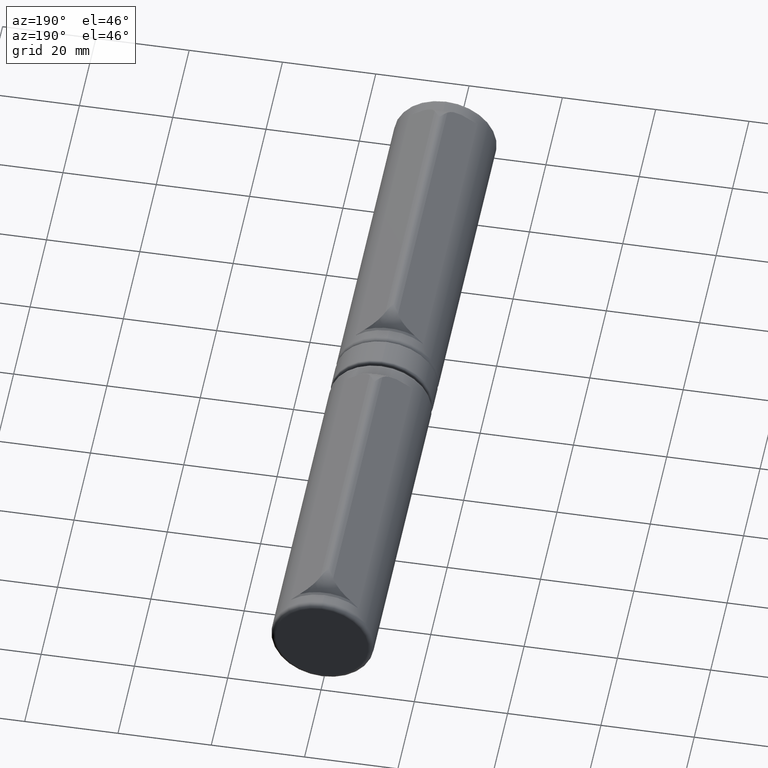
[diagram: clean part render]
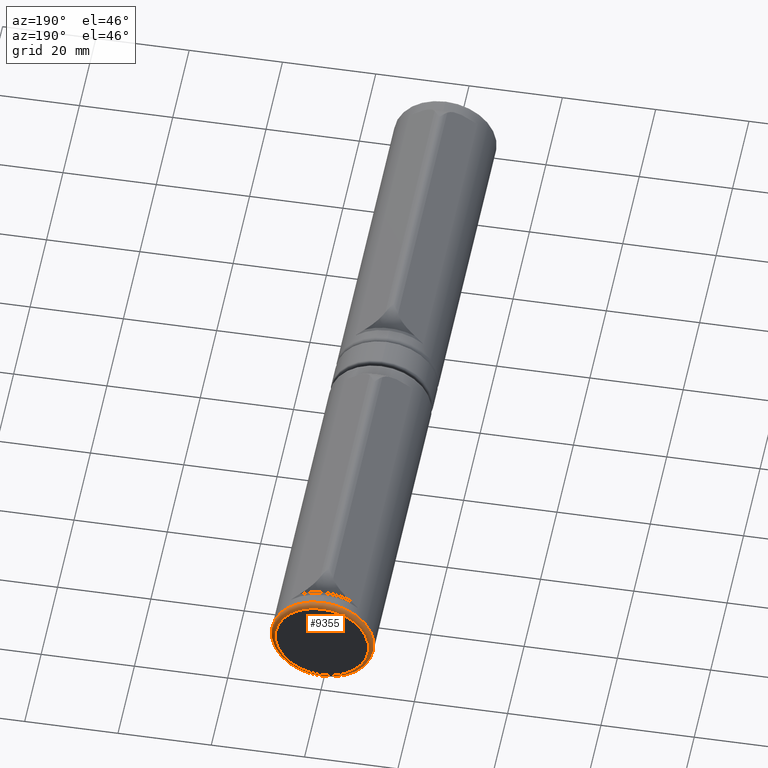
[diagram: same view with one face highlighted and labeled with its STEP entity id]
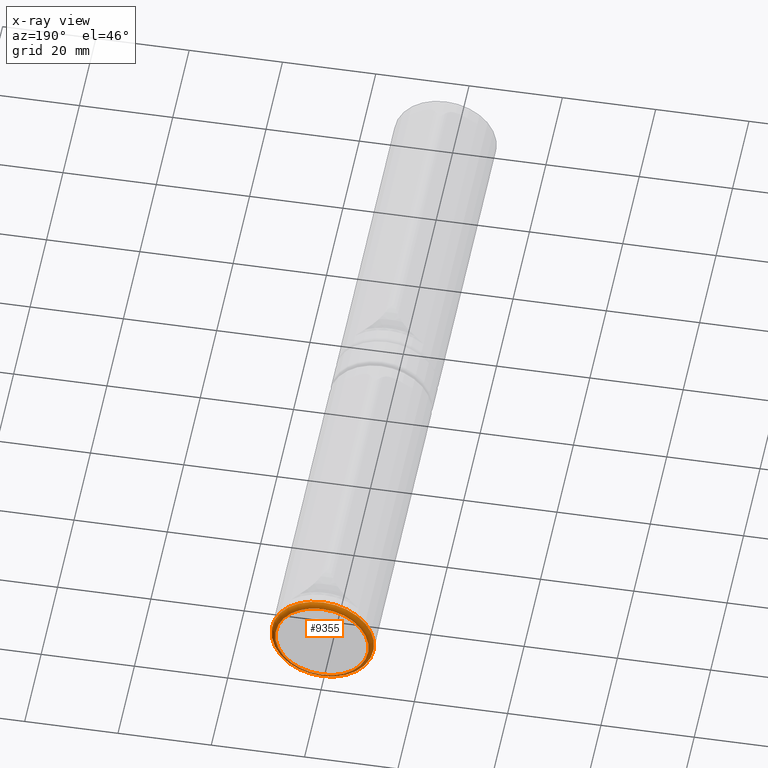
[diagram: x-ray of the same camera — body ghosted, the highlighted face saturated]
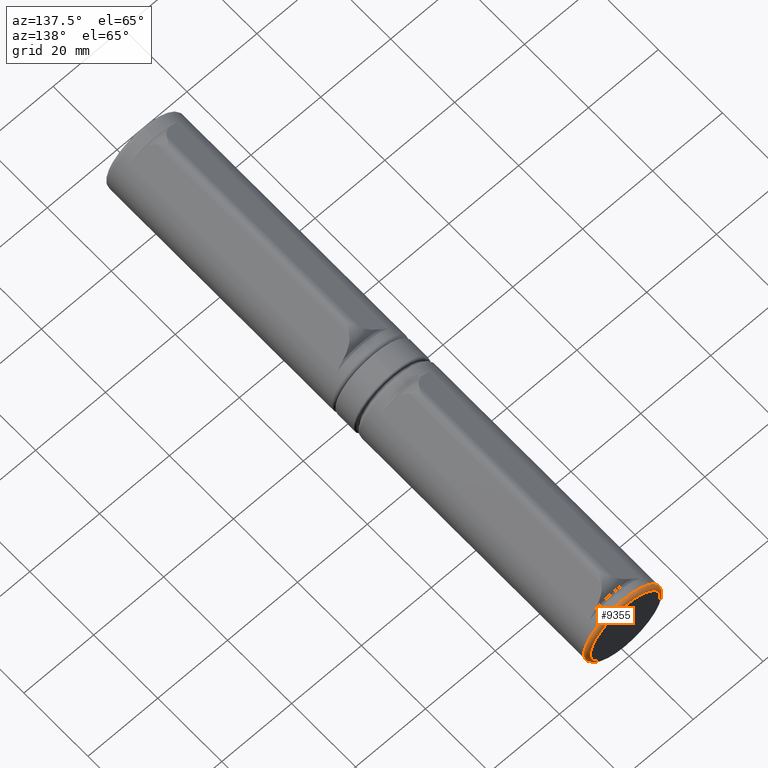
[diagram: same view with one face highlighted and labeled with its STEP entity id]
A machine part, auxiliary view. The second image highlights one B-rep face of the part: STEP entity #9355.
The next image is the same camera in x-ray: the body ghosted, the highlighted face saturated — about 0% of this face is hidden behind the body in this view.
A second angle (auxiliary view) of the same face is appended — the face is thin or edge-on in the first view.
In plain terms, the highlighted toroidal blend (fillet) surface has major radius 10 mm and minor (blend) radius 1 mm.
Its self-contained STEP definition (entity closure, byte-faithful):
#421 = VERTEX_POINT ( 'NONE', #3171 ) ;
#495 = CARTESIAN_POINT ( 'NONE',  ( 0.000000000000000000, 36.00000000000000000, 9.999999999999998224 ) ) ;
#984 = EDGE_LOOP ( 'NONE', ( #1140 ) ) ;
#1140 = ORIENTED_EDGE ( 'NONE', *, *, #10132, .F. ) ;
#1149 = FACE_OUTER_BOUND ( 'NONE', #984, .T. ) ;
#1178 = AXIS2_PLACEMENT_3D ( 'NONE', #3445, #7831, #9567 ) ;
#1308 = AXIS2_PLACEMENT_3D ( 'NONE', #10357, #8639, #7725 ) ;
#1808 = DIRECTION ( 'NONE',  ( 0.000000000000000000, 0.000000000000000000, 1.000000000000000000 ) ) ;
#2183 = TOROIDAL_SURFACE ( 'NONE', #1308, 9.999999999999998224, 1.000000000000000000 ) ;
#2410 = CIRCLE ( 'NONE', #1178, 9.999999999999998224 ) ;
#3171 = CARTESIAN_POINT ( 'NONE',  ( 0.000000000000000000, 34.99999999999999289, 10.99999999999999822 ) ) ;
#3445 = CARTESIAN_POINT ( 'NONE',  ( 0.000000000000000000, 36.00000000000000000, 0.000000000000000000 ) ) ;
#3952 = EDGE_CURVE ( 'NONE', #10789, #10789, #2410, .T. ) ;
#4193 = CIRCLE ( 'NONE', #7011, 10.99999999999999822 ) ;
#6130 = DIRECTION ( 'NONE',  ( -0.000000000000000000, -1.000000000000000000, -0.000000000000000000 ) ) ;
#6993 = CARTESIAN_POINT ( 'NONE',  ( 0.000000000000000000, 34.99999999999999289, 0.000000000000000000 ) ) ;
#7011 = AXIS2_PLACEMENT_3D ( 'NONE', #6993, #6130, #1808 ) ;
#7725 = DIRECTION ( 'NONE',  ( 0.000000000000000000, 0.000000000000000000, 1.000000000000000000 ) ) ;
#7831 = DIRECTION ( 'NONE',  ( 0.000000000000000000, 1.000000000000000000, 0.000000000000000000 ) ) ;
#8639 = DIRECTION ( 'NONE',  ( 0.000000000000000000, 1.000000000000000000, 0.000000000000000000 ) ) ;
#8863 = FACE_OUTER_BOUND ( 'NONE', #9878, .T. ) ;
#9355 = ADVANCED_FACE ( 'NONE', ( #1149, #8863 ), #2183, .T. ) ;
#9567 = DIRECTION ( 'NONE',  ( 0.000000000000000000, 0.000000000000000000, 1.000000000000000000 ) ) ;
#9878 = EDGE_LOOP ( 'NONE', ( #10052 ) ) ;
#10052 = ORIENTED_EDGE ( 'NONE', *, *, #3952, .F. ) ;
#10132 = EDGE_CURVE ( 'NONE', #421, #421, #4193, .T. ) ;
#10357 = CARTESIAN_POINT ( 'NONE',  ( 0.000000000000000000, 34.99999999999999289, 0.000000000000000000 ) ) ;
#10789 = VERTEX_POINT ( 'NONE', #495 ) ;